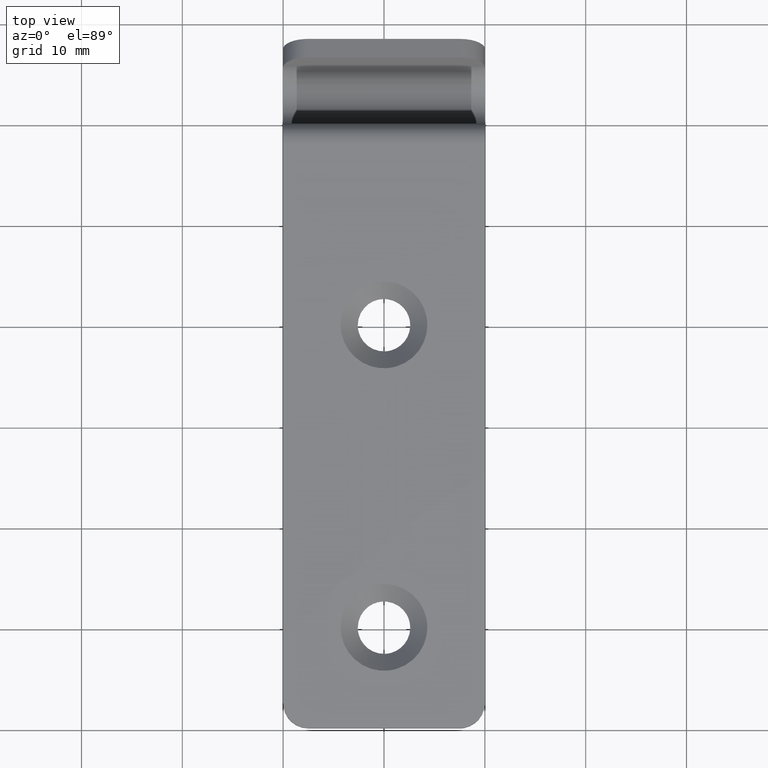
[diagram: clean part render]
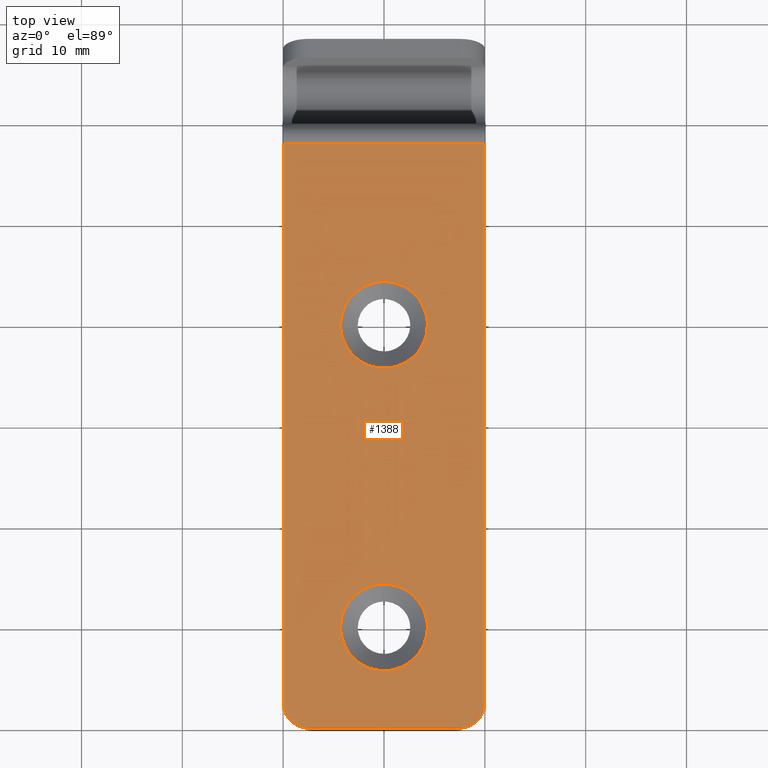
[diagram: same view with one face highlighted and labeled with its STEP entity id]
A machine part, top view. The second image highlights one B-rep face of the part: STEP entity #1388.
In plain terms, the highlighted face is a freeform B-spline surface patch.
Its self-contained STEP definition (entity closure, byte-faithful):
#264=CARTESIAN_POINT('',(-0.337374111841993,14.286744535063580,2.744801E-011));
#265=VERTEX_POINT('',#264);
#271=CARTESIAN_POINT('',(-4.300000000000096,10.000000000000201,-6.661338E-015));
#272=VERTEX_POINT('',#271);
#273=CARTESIAN_POINT('',(-4.300000000000096,10.000000000000201,-6.661338E-015));
#274=CARTESIAN_POINT('',(-4.300000000000097,13.974879113739744,-6.661338E-015));
#275=CARTESIAN_POINT('',(-0.337374111841993,14.286744535063580,2.744801E-011));
#283=(BOUNDED_CURVE()B_SPLINE_CURVE(2,(#273,#274,#275),.UNSPECIFIED.,.F.,.U.)B_SPLINE_CURVE_WITH_KNOTS((3,3),(0.0,0.236331300615964),.UNSPECIFIED.)CURVE()GEOMETRIC_REPRESENTATION_ITEM()RATIONAL_B_SPLINE_CURVE((1.0,0.723120658624883,0.969723356136748))REPRESENTATION_ITEM(''));
#284=EDGE_CURVE('',#272,#265,#283,.T.);
#286=CARTESIAN_POINT('',(0.337374111841994,5.713255464936820,2.744751E-011));
#287=VERTEX_POINT('',#286);
#288=CARTESIAN_POINT('',(0.337374111841994,5.713255464936820,2.744751E-011));
#289=CARTESIAN_POINT('',(0.168947460344056,5.700000000000105,-6.661338E-015));
#290=CARTESIAN_POINT('',(0.0,5.700000000000104,-6.661338E-015));
#291=CARTESIAN_POINT('',(-4.300000000000096,5.700000000000104,-6.661338E-015));
#292=CARTESIAN_POINT('',(-4.300000000000096,10.000000000000201,-6.661338E-015));
#300=(BOUNDED_CURVE()B_SPLINE_CURVE(2,(#288,#289,#290,#291,#292),.UNSPECIFIED.,.F.,.U.)B_SPLINE_CURVE_WITH_KNOTS((3,2,3),(0.736331300615964,0.750000000000000,1.0),.UNSPECIFIED.)CURVE()GEOMETRIC_REPRESENTATION_ITEM()RATIONAL_B_SPLINE_CURVE((0.969723356136748,0.983986122561664,1.0,0.707106781186548,1.0))REPRESENTATION_ITEM(''));
#301=EDGE_CURVE('',#287,#272,#300,.T.);
#338=CARTESIAN_POINT('',(4.300000000000096,10.000000000000201,0.0));
#339=VERTEX_POINT('',#338);
#340=CARTESIAN_POINT('',(4.300000000000096,10.000000000000201,-6.661338E-015));
#341=CARTESIAN_POINT('',(4.300000000000095,6.025120886260643,-6.661338E-015));
#342=CARTESIAN_POINT('',(0.337374111841994,5.713255464936820,2.744751E-011));
#350=(BOUNDED_CURVE()B_SPLINE_CURVE(2,(#340,#341,#342),.UNSPECIFIED.,.F.,.U.)B_SPLINE_CURVE_WITH_KNOTS((3,3),(0.500000000000000,0.736331300615964),.UNSPECIFIED.)CURVE()GEOMETRIC_REPRESENTATION_ITEM()RATIONAL_B_SPLINE_CURVE((1.0,0.723120658624883,0.969723356136749))REPRESENTATION_ITEM(''));
#351=EDGE_CURVE('',#339,#287,#350,.T.);
#353=CARTESIAN_POINT('',(-0.337374111841993,14.286744535063578,2.744801E-011));
#354=CARTESIAN_POINT('',(-0.168947460344055,14.300000000000294,-6.661338E-015));
#355=CARTESIAN_POINT('',(0.0,14.300000000000299,-6.661338E-015));
#356=CARTESIAN_POINT('',(4.300000000000096,14.300000000000297,-6.661338E-015));
#357=CARTESIAN_POINT('',(4.300000000000096,10.000000000000201,-6.661338E-015));
#365=(BOUNDED_CURVE()B_SPLINE_CURVE(2,(#353,#354,#355,#356,#357),.UNSPECIFIED.,.F.,.U.)B_SPLINE_CURVE_WITH_KNOTS((3,2,3),(0.236331300615964,0.250000000000000,0.500000000000000),.UNSPECIFIED.)CURVE()GEOMETRIC_REPRESENTATION_ITEM()RATIONAL_B_SPLINE_CURVE((0.969723356136748,0.983986122561664,1.0,0.707106781186548,1.0))REPRESENTATION_ITEM(''));
#366=EDGE_CURVE('',#265,#339,#365,.T.);
#592=CARTESIAN_POINT('',(-0.337374111841993,44.286744535063377,2.744623E-011));
#593=VERTEX_POINT('',#592);
#599=CARTESIAN_POINT('',(-4.300000000000096,40.0,-6.661338E-015));
#600=VERTEX_POINT('',#599);
#601=CARTESIAN_POINT('',(-4.300000000000096,40.0,-6.661338E-015));
#602=CARTESIAN_POINT('',(-4.300000000000097,43.974879113739540,-6.661338E-015));
#603=CARTESIAN_POINT('',(-0.337374111841993,44.286744535063370,2.744623E-011));
#611=(BOUNDED_CURVE()B_SPLINE_CURVE(2,(#601,#602,#603),.UNSPECIFIED.,.F.,.U.)B_SPLINE_CURVE_WITH_KNOTS((3,3),(0.0,0.236331300615964),.UNSPECIFIED.)CURVE()GEOMETRIC_REPRESENTATION_ITEM()RATIONAL_B_SPLINE_CURVE((1.0,0.723120658624883,0.969723356136748))REPRESENTATION_ITEM(''));
#612=EDGE_CURVE('',#600,#593,#611,.T.);
#614=CARTESIAN_POINT('',(0.337374111841994,35.713255464936623,2.744642E-011));
#615=VERTEX_POINT('',#614);
#616=CARTESIAN_POINT('',(0.337374111841994,35.713255464936630,2.744642E-011));
#617=CARTESIAN_POINT('',(0.168947460344056,35.699999999999896,-6.661338E-015));
#618=CARTESIAN_POINT('',(0.0,35.699999999999903,-6.661338E-015));
#619=CARTESIAN_POINT('',(-4.300000000000096,35.699999999999903,-6.661338E-015));
#620=CARTESIAN_POINT('',(-4.300000000000096,40.0,-6.661338E-015));
#628=(BOUNDED_CURVE()B_SPLINE_CURVE(2,(#616,#617,#618,#619,#620),.UNSPECIFIED.,.F.,.U.)B_SPLINE_CURVE_WITH_KNOTS((3,2,3),(0.736331300615964,0.750000000000000,1.0),.UNSPECIFIED.)CURVE()GEOMETRIC_REPRESENTATION_ITEM()RATIONAL_B_SPLINE_CURVE((0.969723356136748,0.983986122561664,1.0,0.707106781186548,1.0))REPRESENTATION_ITEM(''));
#629=EDGE_CURVE('',#615,#600,#628,.T.);
#666=CARTESIAN_POINT('',(4.300000000000096,40.0,0.0));
#667=VERTEX_POINT('',#666);
#668=CARTESIAN_POINT('',(4.300000000000096,40.0,-6.661338E-015));
#669=CARTESIAN_POINT('',(4.300000000000095,36.025120886260446,-6.661338E-015));
#670=CARTESIAN_POINT('',(0.337374111841994,35.713255464936623,2.744642E-011));
#678=(BOUNDED_CURVE()B_SPLINE_CURVE(2,(#668,#669,#670),.UNSPECIFIED.,.F.,.U.)B_SPLINE_CURVE_WITH_KNOTS((3,3),(0.500000000000000,0.736331300615964),.UNSPECIFIED.)CURVE()GEOMETRIC_REPRESENTATION_ITEM()RATIONAL_B_SPLINE_CURVE((1.0,0.723120658624883,0.969723356136749))REPRESENTATION_ITEM(''));
#679=EDGE_CURVE('',#667,#615,#678,.T.);
#681=CARTESIAN_POINT('',(-0.337374111841993,44.286744535063377,2.744623E-011));
#682=CARTESIAN_POINT('',(-0.168947460344055,44.300000000000104,-6.661338E-015));
#683=CARTESIAN_POINT('',(0.0,44.300000000000097,-6.661338E-015));
#684=CARTESIAN_POINT('',(4.300000000000096,44.300000000000104,-6.661338E-015));
#685=CARTESIAN_POINT('',(4.300000000000096,40.0,-6.661338E-015));
#693=(BOUNDED_CURVE()B_SPLINE_CURVE(2,(#681,#682,#683,#684,#685),.UNSPECIFIED.,.F.,.U.)B_SPLINE_CURVE_WITH_KNOTS((3,2,3),(0.236331300615964,0.250000000000000,0.500000000000000),.UNSPECIFIED.)CURVE()GEOMETRIC_REPRESENTATION_ITEM()RATIONAL_B_SPLINE_CURVE((0.969723356136748,0.983986122561664,1.0,0.707106781186548,1.0))REPRESENTATION_ITEM(''));
#694=EDGE_CURVE('',#593,#667,#693,.T.);
#714=CARTESIAN_POINT('',(-10.0,2.500000000000000,-4.592274E-016));
#715=VERTEX_POINT('',#714);
#716=CARTESIAN_POINT('',(-7.500000000000000,0.0,0.0));
#717=VERTEX_POINT('',#716);
#718=CARTESIAN_POINT('',(-10.0,2.500000000000000,-4.592274E-016));
#719=CARTESIAN_POINT('',(-10.000000000000002,0.0,-4.592274E-016));
#720=CARTESIAN_POINT('',(-7.500000000000000,0.0,-4.592274E-016));
#728=(BOUNDED_CURVE()B_SPLINE_CURVE(2,(#718,#719,#720),.UNSPECIFIED.,.F.,.U.)CURVE()GEOMETRIC_REPRESENTATION_ITEM()QUASI_UNIFORM_CURVE()RATIONAL_B_SPLINE_CURVE((1.0,0.707106781186548,1.0))REPRESENTATION_ITEM(''));
#729=EDGE_CURVE('',#715,#717,#728,.T.);
#775=CARTESIAN_POINT('',(7.500000000000000,0.0,0.0));
#776=VERTEX_POINT('',#775);
#777=CARTESIAN_POINT('',(10.0,2.500000000000000,-4.592274E-016));
#778=VERTEX_POINT('',#777);
#779=CARTESIAN_POINT('',(7.500000000000000,0.0,-4.592274E-016));
#780=CARTESIAN_POINT('',(10.000000000000002,0.0,-4.592274E-016));
#781=CARTESIAN_POINT('',(10.0,2.500000000000000,-4.592274E-016));
#789=(BOUNDED_CURVE()B_SPLINE_CURVE(2,(#779,#780,#781),.UNSPECIFIED.,.F.,.U.)CURVE()GEOMETRIC_REPRESENTATION_ITEM()QUASI_UNIFORM_CURVE()RATIONAL_B_SPLINE_CURVE((1.0,0.707106781186548,1.0))REPRESENTATION_ITEM(''));
#790=EDGE_CURVE('',#776,#778,#789,.T.);
#993=CARTESIAN_POINT('',(-10.0,58.000300000000003,-1.065814E-014));
#994=VERTEX_POINT('',#993);
#995=CARTESIAN_POINT('',(-10.0,58.000300000000003,-1.065814E-014));
#996=CARTESIAN_POINT('',(-10.0,2.500000000000000,-4.592274E-016));
#997=QUASI_UNIFORM_CURVE('',1,(#995,#996),.UNSPECIFIED.,.F.,.U.);
#998=EDGE_CURVE('',#994,#715,#997,.T.);
#1068=CARTESIAN_POINT('',(10.0,58.000300000000003,-1.065814E-014));
#1069=VERTEX_POINT('',#1068);
#1070=CARTESIAN_POINT('',(10.0,58.000300000000003,-1.065814E-014));
#1071=CARTESIAN_POINT('',(10.0,2.500000000000000,-4.592274E-016));
#1072=QUASI_UNIFORM_CURVE('',1,(#1070,#1071),.UNSPECIFIED.,.F.,.U.);
#1073=EDGE_CURVE('',#1069,#778,#1072,.T.);
#1224=CARTESIAN_POINT('',(7.500000000000000,0.0,0.0));
#1225=CARTESIAN_POINT('',(-7.500000000000000,0.0,0.0));
#1226=QUASI_UNIFORM_CURVE('',1,(#1224,#1225),.UNSPECIFIED.,.F.,.U.);
#1227=EDGE_CURVE('',#776,#717,#1226,.T.);
#1248=CARTESIAN_POINT('',(10.0,58.000300000000003,-1.065814E-014));
#1249=CARTESIAN_POINT('',(-10.0,58.000300000000003,-1.065814E-014));
#1250=QUASI_UNIFORM_CURVE('',1,(#1248,#1249),.UNSPECIFIED.,.F.,.U.);
#1251=EDGE_CURVE('',#1069,#994,#1250,.T.);
#1363=CARTESIAN_POINT('',(-10.998999961236120,-2.897114872584165,-1.065413E-014));
#1364=CARTESIAN_POINT('',(-10.998999961236120,60.897416428273431,-1.065413E-014));
#1365=CARTESIAN_POINT('',(10.999000497677921,-2.897114872584165,-1.065413E-014));
#1366=CARTESIAN_POINT('',(10.999000497677921,60.897416428273431,-1.065413E-014));
#1367=B_SPLINE_SURFACE_WITH_KNOTS('',1,1,((#1363,#1365),(#1364,#1366)),.UNSPECIFIED.,.F.,.F.,.U.,(2,2),(2,2),(0.0,63.794531300857592),(0.0,21.998000458914039),.UNSPECIFIED.);
#1368=ORIENTED_EDGE('',*,*,#1227,.F.);
#1369=ORIENTED_EDGE('',*,*,#790,.T.);
#1370=ORIENTED_EDGE('',*,*,#1073,.F.);
#1371=ORIENTED_EDGE('',*,*,#1251,.T.);
#1372=ORIENTED_EDGE('',*,*,#998,.T.);
#1373=ORIENTED_EDGE('',*,*,#729,.T.);
#1374=EDGE_LOOP('',(#1368,#1369,#1370,#1371,#1372,#1373));
#1375=FACE_OUTER_BOUND('',#1374,.T.);
#1376=ORIENTED_EDGE('',*,*,#679,.T.);
#1377=ORIENTED_EDGE('',*,*,#629,.T.);
#1378=ORIENTED_EDGE('',*,*,#612,.T.);
#1379=ORIENTED_EDGE('',*,*,#694,.T.);
#1380=EDGE_LOOP('',(#1376,#1377,#1378,#1379));
#1381=FACE_BOUND('',#1380,.T.);
#1382=ORIENTED_EDGE('',*,*,#351,.T.);
#1383=ORIENTED_EDGE('',*,*,#301,.T.);
#1384=ORIENTED_EDGE('',*,*,#284,.T.);
#1385=ORIENTED_EDGE('',*,*,#366,.T.);
#1386=EDGE_LOOP('',(#1382,#1383,#1384,#1385));
#1387=FACE_BOUND('',#1386,.T.);
#1388=ADVANCED_FACE('',(#1375,#1381,#1387),#1367,.F.);